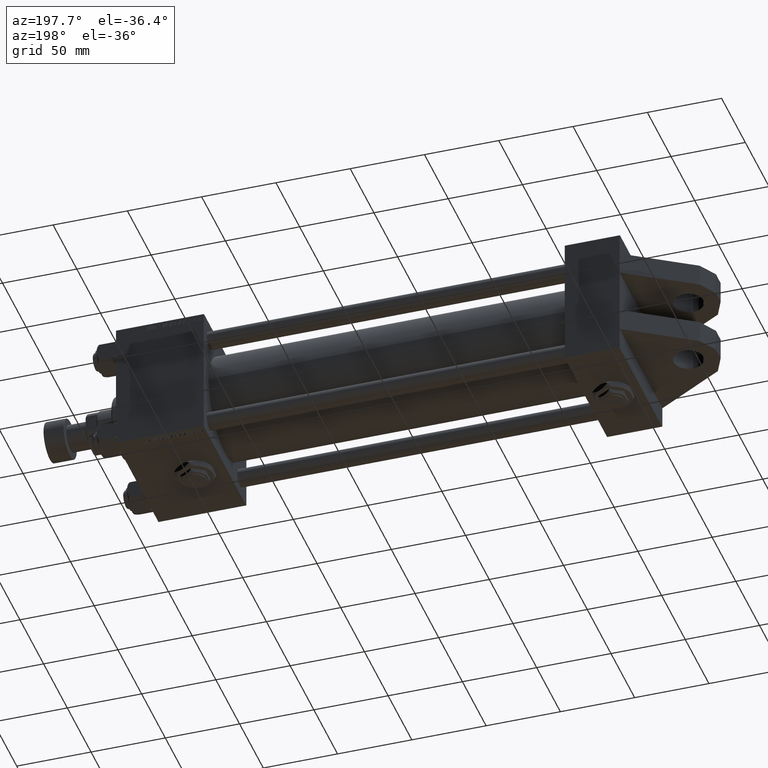
[diagram: clean part render]
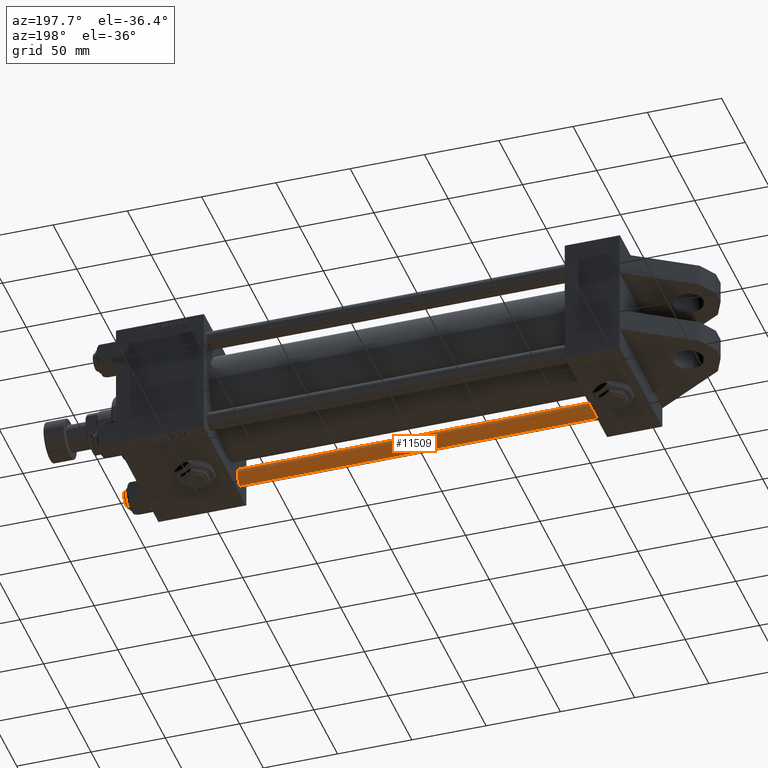
[diagram: same view with one face highlighted and labeled with its STEP entity id]
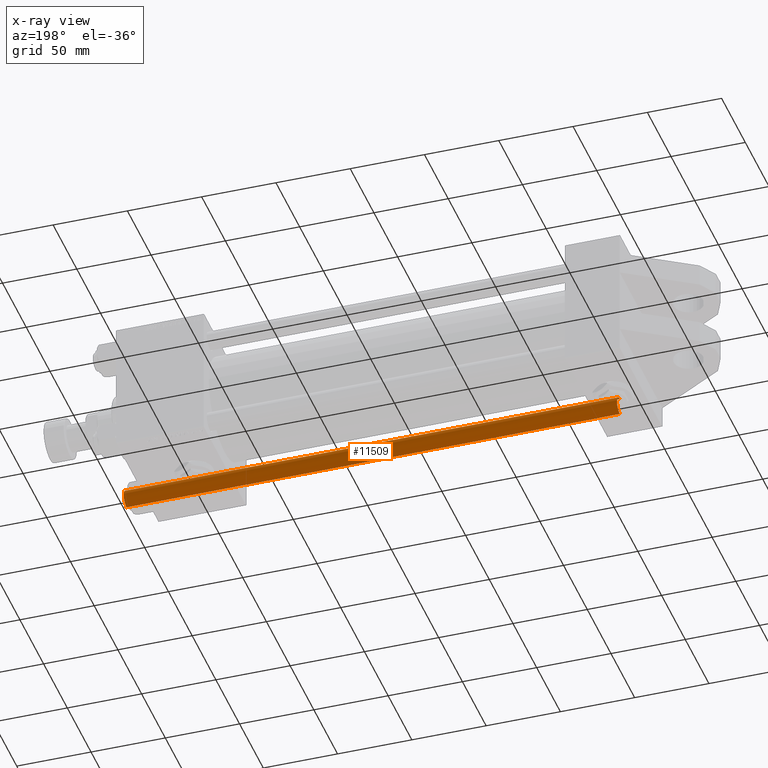
[diagram: x-ray of the same camera — body ghosted, the highlighted face saturated]
A machine part, auxiliary view. The second image highlights one B-rep face of the part: STEP entity #11509.
The next image is the same camera in x-ray: the body ghosted, the highlighted face saturated — about 0% of this face is hidden behind the body in this view.
In plain terms, the highlighted cylindrical surface (edge-blend (fillet) strip) has radius 6 mm, axis along (-1, -0, 0).
Its self-contained STEP definition (entity closure, byte-faithful):
#3072 = ORIENTED_EDGE ( 'NONE', *, *, #42114, .T. ) ;
#4064 = VERTEX_POINT ( 'NONE', #45798 ) ;
#6759 = VERTEX_POINT ( 'NONE', #22047 ) ;
#6797 = DIRECTION ( 'NONE',  ( -0.000000000000000000, -0.000000000000000000, -1.000000000000000000 ) ) ;
#6805 = EDGE_LOOP ( 'NONE', ( #28702, #43788, #37924, #3072 ) ) ;
#9326 = CARTESIAN_POINT ( 'NONE',  ( 6.000000000000000888, 7.347880794884120722E-16, 332.5000000000001137 ) ) ;
#11301 = DIRECTION ( 'NONE',  ( -0.000000000000000000, -0.000000000000000000, 1.000000000000000000 ) ) ;
#11509 = ADVANCED_FACE ( 'NONE', ( #17408 ), #45187, .T. ) ;
#13043 = CARTESIAN_POINT ( 'NONE',  ( -6.000000000000000888, 0.000000000000000000, 333.0000000000000000 ) ) ;
#14238 = EDGE_CURVE ( 'NONE', #34865, #22035, #32903, .T. ) ;
#15283 = CARTESIAN_POINT ( 'NONE',  ( 0.000000000000000000, 0.000000000000000000, 0.5000000000000004441 ) ) ;
#17408 = FACE_OUTER_BOUND ( 'NONE', #6805, .T. ) ;
#20276 = VECTOR ( 'NONE', #6797, 1000.000000000000000 ) ;
#22035 = VERTEX_POINT ( 'NONE', #50832 ) ;
#22047 = CARTESIAN_POINT ( 'NONE',  ( 6.000000000000000888, 7.347880794884120722E-16, 0.5000000000000004441 ) ) ;
#27170 = DIRECTION ( 'NONE',  ( 1.000000000000000000, 0.000000000000000000, 0.000000000000000000 ) ) ;
#28702 = ORIENTED_EDGE ( 'NONE', *, *, #39894, .F. ) ;
#29310 = DIRECTION ( 'NONE',  ( -0.000000000000000000, -0.000000000000000000, -1.000000000000000000 ) ) ;
#32742 = CARTESIAN_POINT ( 'NONE',  ( 0.000000000000000000, 0.000000000000000000, 333.0000000000000000 ) ) ;
#32903 = CIRCLE ( 'NONE', #48126, 6.000000000000000888 ) ;
#33577 = LINE ( 'NONE', #37550, #20276 ) ;
#34781 = EDGE_CURVE ( 'NONE', #22035, #4064, #44511, .T. ) ;
#34865 = VERTEX_POINT ( 'NONE', #9326 ) ;
#37550 = CARTESIAN_POINT ( 'NONE',  ( 6.000000000000000888, 7.347880794884120722E-16, 333.0000000000000000 ) ) ;
#37924 = ORIENTED_EDGE ( 'NONE', *, *, #34781, .T. ) ;
#38905 = DIRECTION ( 'NONE',  ( 0.000000000000000000, 0.000000000000000000, -1.000000000000000000 ) ) ;
#39894 = EDGE_CURVE ( 'NONE', #34865, #6759, #33577, .T. ) ;
#40539 = DIRECTION ( 'NONE',  ( -0.000000000000000000, -0.000000000000000000, -1.000000000000000000 ) ) ;
#42114 = EDGE_CURVE ( 'NONE', #4064, #6759, #49046, .T. ) ;
#42358 = CARTESIAN_POINT ( 'NONE',  ( 0.000000000000000000, 0.000000000000000000, 332.5000000000001137 ) ) ;
#43788 = ORIENTED_EDGE ( 'NONE', *, *, #14238, .T. ) ;
#44511 = LINE ( 'NONE', #13043, #50590 ) ;
#44702 = AXIS2_PLACEMENT_3D ( 'NONE', #32742, #29310, #48894 ) ;
#45187 = CYLINDRICAL_SURFACE ( 'NONE', #44702, 6.000000000000000888 ) ;
#45798 = CARTESIAN_POINT ( 'NONE',  ( -6.000000000000000888, 0.000000000000000000, 0.5000000000000004441 ) ) ;
#48126 = AXIS2_PLACEMENT_3D ( 'NONE', #42358, #38905, #51070 ) ;
#48192 = AXIS2_PLACEMENT_3D ( 'NONE', #15283, #11301, #27170 ) ;
#48894 = DIRECTION ( 'NONE',  ( -1.000000000000000000, 0.000000000000000000, 0.000000000000000000 ) ) ;
#49046 = CIRCLE ( 'NONE', #48192, 6.000000000000000888 ) ;
#50590 = VECTOR ( 'NONE', #40539, 1000.000000000000000 ) ;
#50832 = CARTESIAN_POINT ( 'NONE',  ( -6.000000000000000888, 0.000000000000000000, 332.5000000000001137 ) ) ;
#51070 = DIRECTION ( 'NONE',  ( 1.000000000000000000, 0.000000000000000000, 0.000000000000000000 ) ) ;